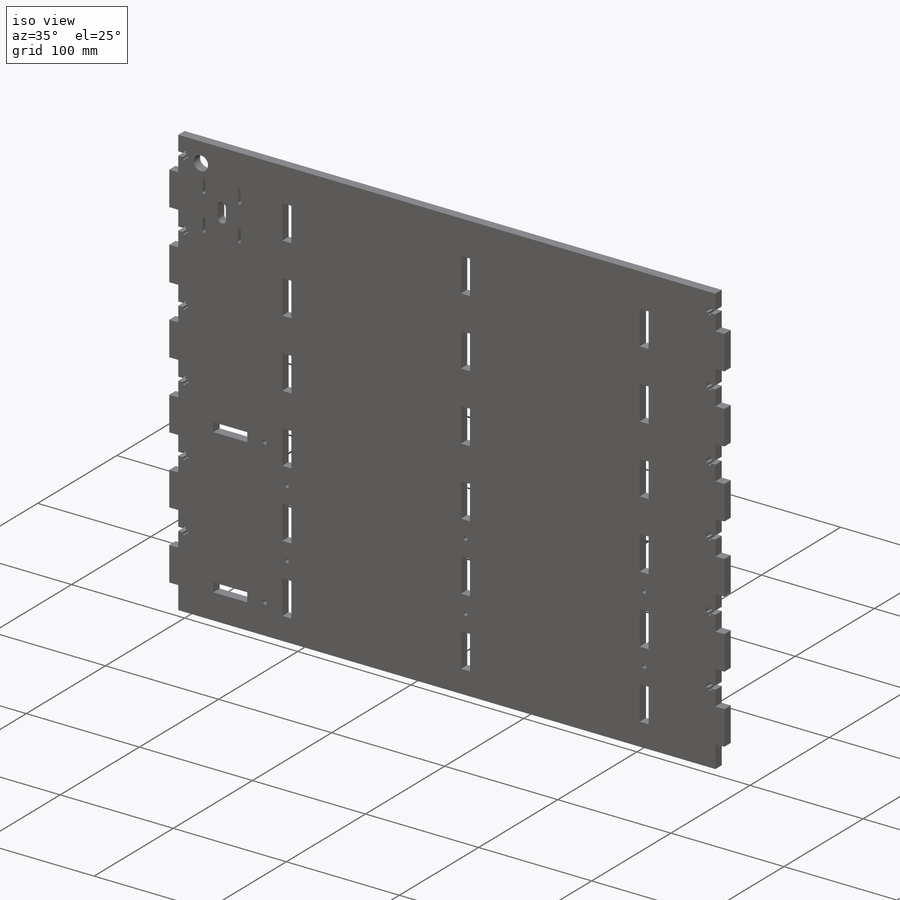
[diagram: iso view]
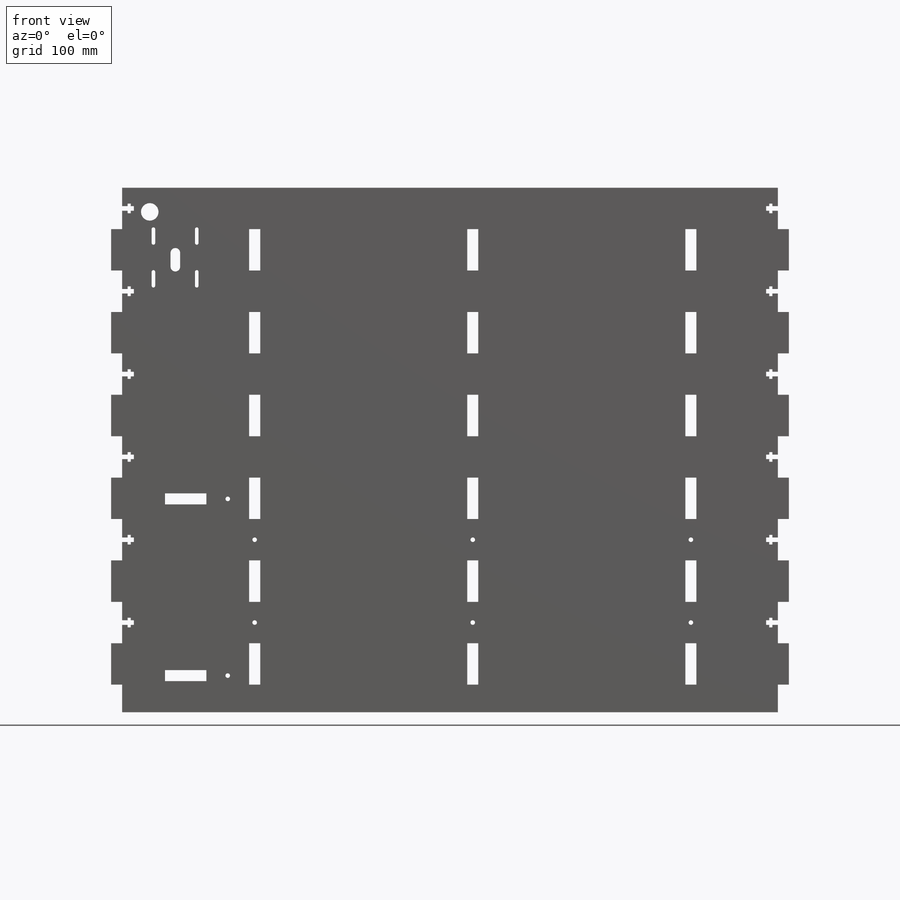
[diagram: front view]
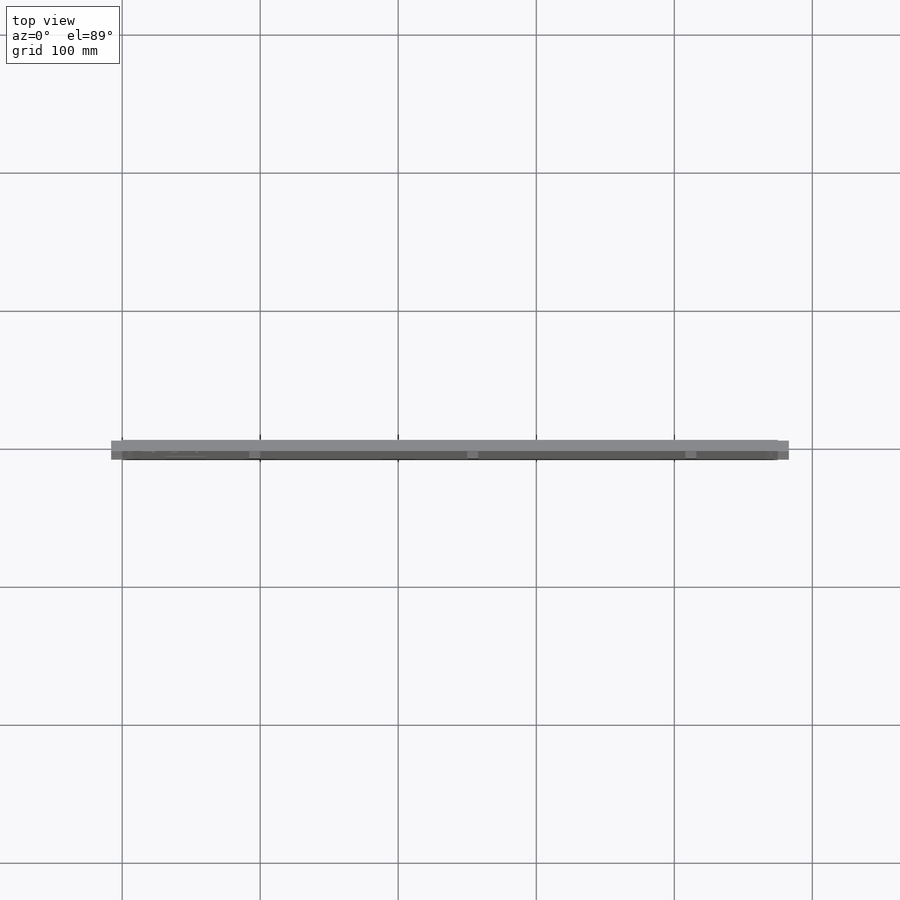
[diagram: top view]
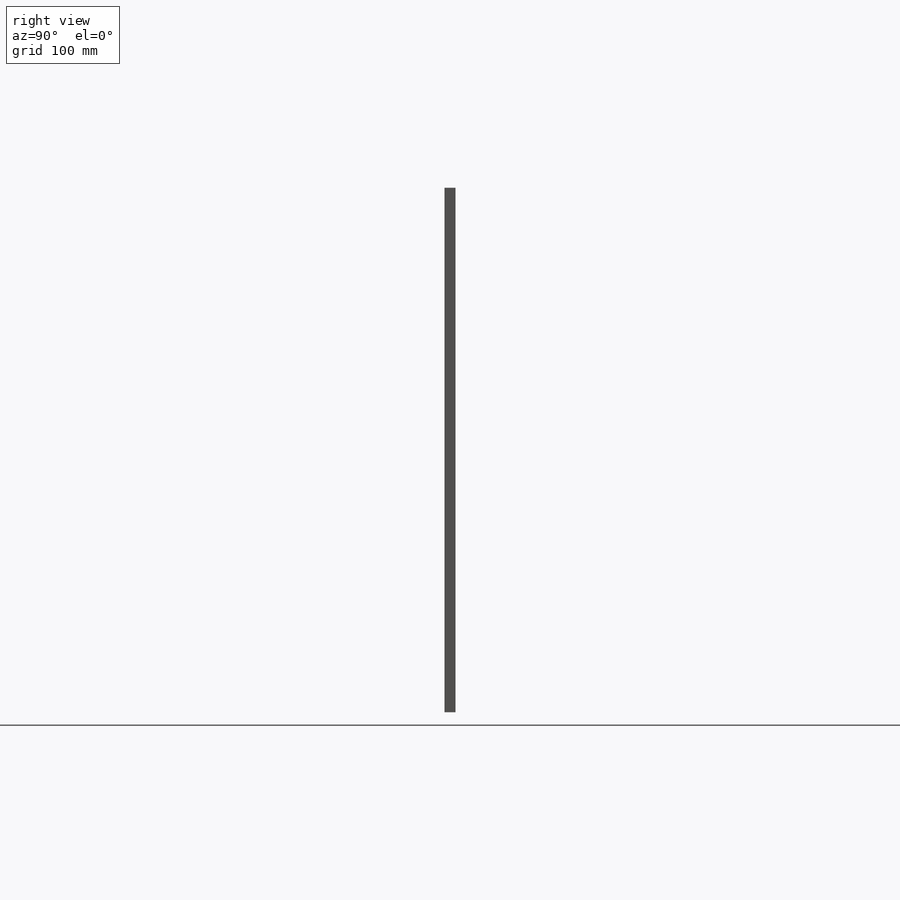
[diagram: right view]
SOLIDWORKS PART (.sldprt)
format: sldprt  version: not decoded by parser v0  size: 706,048 bytes
history: native  units: mm
features: sketch x3, extrude x2, material x1, cut_extrude x1 (+16 scaffold rows collapsed)
feature tree (23):
  scaffold x16  (default folders/planes/origin — collapsed)
  material  "Acrylic (Medium-high impact)"
  sketch  "Sketch1"  dims[c1.D4=1.5mm c1.D6=1.5mm c1.D3=~34.28602mm c2.D4=~36.769553mm c2.D5=~36.769553mm c2.D6=3.0mm c3.D4=1.25mm c3.D5=3.0mm c3.D3=1.3mm c4.D4=3.5mm c4.D11=12.7mm c4.D13=3.3mm c4.D23=3.3mm c4.D1=475.0mm c4.D2=380.0mm c4.D3=10.0mm c4.D5=10.0mm c5.D3=3.0mm c5.D4=1.5mm c5.D5=15.0mm c6.D3=10.0mm c6.D6=10.0mm c6.D7=~20.50008mm c6.D4=~3.452986mm c6.D5=10.0mm c7.D6=10.0mm c7.D7=30.0mm c7.D8=13.0mm c7.D9=17.5mm c7.D10=20.0mm c7.D12=15.5mm c7.D14=92.0mm c7.D15=8.0mm c7.D16=30.0mm c7.D17=30.0mm c7.D22=15.0mm c7.D20=~32.967811mm c7.D25=65.0mm c8.D8=15.5mm c8.D20=~12.182651mm c8.D18=3.0 c8.D19=6.0 c8.D21=2.0 c8.D22=3.0 c8.D24=2.0 c9.D21=2.0]
  extrude  "Boss-Extrude1"  Depth=8mm
  sketch  "Sketch2"  dims[D1=30.0mm D2=30.0mm D3=8.0mm D4=6.0]
  extrude  "Boss-Extrude2"  Depth=8mm
  sketch  "Sketch3"  dims[D1=3.3mm D2=2.2mm D3=4.0mm D4=2.3mm D5=7.0mm D7=15.0mm]
  cut_extrude  "Cut-Extrude1"  [1 undecoded]
decode coverage: 5 of 6 modeling features carry decoded parameters
note: ~ marks probable driven/reference dimensions
note: 1 parameter value undecoded
note: suppression state not decoded; provenance and decode notes live in map.json
